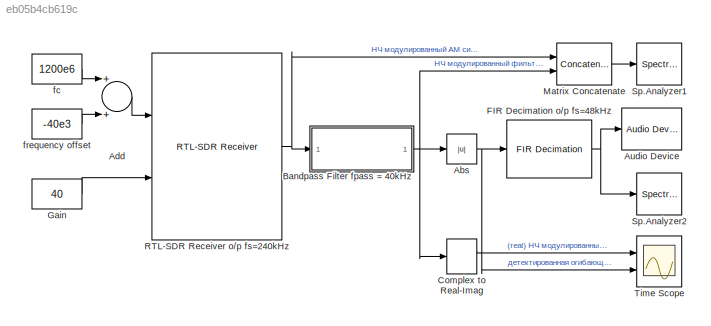
MODEL slx_eb05b4cb619c
KIND model
CONFIG AbsTol = auto
CONFIG EnableMultiTasking = off
CONFIG FixedStep = auto
CONFIG MaxStep = auto
CONFIG MinStep = auto
CONFIG RelTol = 1e-3
CONFIG SampleTimeConstraint = Unconstrained
CONFIG Solver = VariableStepAuto
CONFIG SolverName = VariableStepAuto
CONFIG StartTime = 0.0
CONFIG StopTime = inf
BLOCK [Abs] Abs
  SaturateOnIntegerOverflow = off
BLOCK [Sum] Add
  InputSameDT = off
  OutDataTypeStr = Inherit: Inherit via internal rule
  Ports = [2, 1]
  SaturateOnIntegerOverflow = off
BLOCK [Reference] Audio Device  REF=dspsnks4/Audio Device
Writer
  Ports = [1]
  SourceBlock = dspsnks4/Audio Device\nWriter
  SourceProductBaseCode = DS
  SourceProductName = DSP System Toolbox
  SourceType = Audio Device Writer
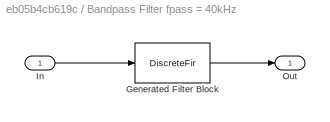
BLOCK [SubSystem] Bandpass Filter fpass = 40kHz
  CopyFcn = fdesignblkfcn(gcbh, {'CopyFcn'});
  DialogController = fdesignblkfcn
  InitFcn = fdesignblkfcn(gcbh, {'InitFcn'});
  Ports = [1, 1]
  RequestExecContextInheritance = off
  UserDataPersistent = on
BLOCK [DiscreteFir] Bandpass Filter fpass = 40kHz/Generated Filter Block
  Coefficients = [0.0024383680654391279 -0.0024904844872335181 0.0008296181587990019 0.00075763990941193037 -0.0029743999995476087 -0.0056956755431176575 -0.0028776958737143348 0.0020233577255912068 0.0023310659405153251 -0.00027212204672271616 0.001298980790763055 0.0055550878283859399 0.0037368666021221257 -0.0037077560769040417 -0.00613059502047848 -0.0015673349864665275 -0.00064541981755781273 -0.0058853330339...<+1829ch>
  InputPortMap = u0
  InputProcessing = Columns as channels (frame based)
  OutputPortMap = o0
  Ports = [1, 1]
  Tag = BlockMethodSubSystem
BLOCK [Inport] Bandpass Filter fpass = 40kHz/In
  IconDisplay = Port number
BLOCK [Outport] Bandpass Filter fpass = 40kHz/Out
  IconDisplay = Port number
BLOCK [ComplexToRealImag] Complex to Real-Imag
  Ports = [1, 2]
BLOCK [Reference] FIR Decimation o//p fs=48kHz  REF=dspmlti4/FIR
Decimation
  Ports = [1, 1]
  SourceBlock = dspmlti4/FIR\nDecimation
  SourceProductBaseCode = DS
  SourceProductName = DSP System Toolbox
  SourceType = FIR Decimation
  UserDataPersistent = on
BLOCK [Constant] Gain
  Value = 40
BLOCK [Concatenate] Matrix Concatenate
  ConcatenateDimension = 2
  Mode = Multidimensional array
  Ports = [2, 1]
BLOCK [Reference] RTL-SDR Receiver o//p fs=240kHz  REF=sdrrlib/RTL-SDR
Receiver
  Ports = [2, 1]
  SourceBlock = sdrrlib/RTL-SDR\nReceiver
  SourceProductBaseCode = RTLSDR
  SourceProductName = Communications System Toolbox Support Package for RTL-SDR Radio
  SourceType = RTL-SDR Receiver
BLOCK [SpectrumAnalyzer] Sp.Analyzer1
  Ports = [1]
  ScopeSpecificationString = spbscopes.SpectrumAnalyzerBlockCfg('CurrentConfiguration', extmgr.ConfigurationSet(extmgr.Configuration('Core','General UI',true,'ShowMainToolbar',false,'ShowStatusbar',false,'FigureColor',[1 1 1]),extmgr.Configuration('Core','Source UI',true),extmgr.Configuration('Sources','WiredSimulink',true),extmgr.Configuration('Sources','Workspace',false),extmgr.Configuration('Sources','Streaming',false),ext...<+3478ch>
BLOCK [SpectrumAnalyzer] Sp.Analyzer2
  Ports = [1]
  ScopeSpecificationString = spbscopes.SpectrumAnalyzerBlockCfg('CurrentConfiguration', extmgr.ConfigurationSet(extmgr.Configuration('Core','General UI',true,'ShowMainToolbar',false,'ShowStatusbar',false,'FigureColor',[1 1 1]),extmgr.Configuration('Core','Source UI',true),extmgr.Configuration('Sources','WiredSimulink',true),extmgr.Configuration('Sources','Workspace',false),extmgr.Configuration('Sources','Simulink',false),extm...<+3355ch>
BLOCK [Scope] Time Scope
  DefaultConfigurationName = spbscopes.TimeScopeBlockCfg
  Floating = off
  NumInputPorts = 2
  Ports = [2]
  ScopeSpecificationString = spbscopes.TimeScopeBlockCfg('CurrentConfiguration', extmgr.ConfigurationSet(extmgr.Configuration('Core','General UI',true,'ShowMainToolbar',false,'ShowStatusbar',false,'FigureColor',[1 1 1]),extmgr.Configuration('Core','Source UI',true),extmgr.Configuration('Sources','WiredSimulink',true),extmgr.Configuration('Visuals','Time Domain',true,'DisplayPropertyDefaults',struct('MinYLimReal','-1','MaxYLim...<+1910ch>
  UserDataPersistent = on
BLOCK [Constant] fc
  Value = 1200e6
BLOCK [Constant] frequency offset
  Value = -40e3
NET Abs:1 -> FIR Decimation o//p fs=48kHz:1, Time Scope:2
LINE Add:1 -> RTL-SDR Receiver o//p fs=240kHz:1
NET Bandpass Filter fpass = 40kHz:1 -> Abs:1, Complex to Real-Imag:1, Matrix Concatenate:2
LINE Complex to Real-Imag:1 -> Time Scope:1
NET FIR Decimation o//p fs=48kHz:1 -> Audio Device:1, Sp.Analyzer2:1
LINE Gain:1 -> RTL-SDR Receiver o//p fs=240kHz:2
LINE Matrix Concatenate:1 -> Sp.Analyzer1:1
NET RTL-SDR Receiver o//p fs=240kHz:1 -> Bandpass Filter fpass = 40kHz:1, Matrix Concatenate:1
LINE fc:1 -> Add:1
LINE frequency offset:1 -> Add:2
note: NET lines group one-source signal fan-out (src -> all destinations, sorted); 1:1 wires keep LINE
